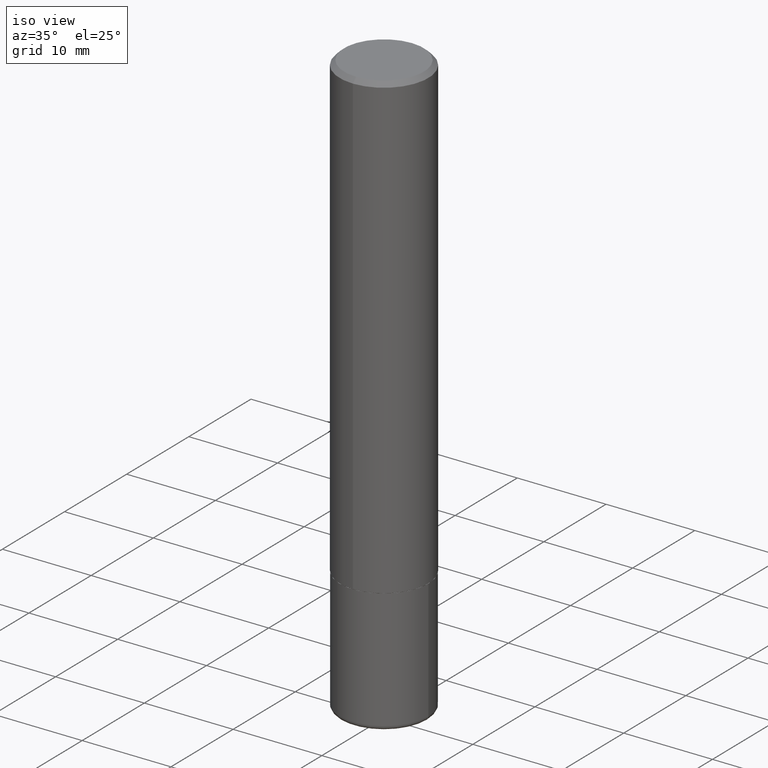
[diagram: clean part render]
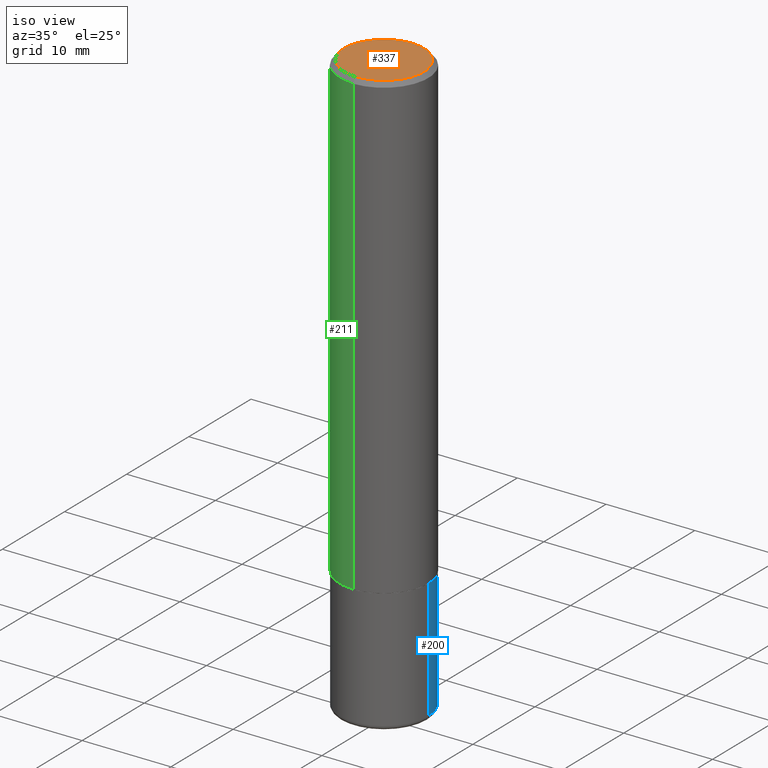
[diagram: same view with three faces highlighted in distinct colors, each labeled with its STEP entity id]
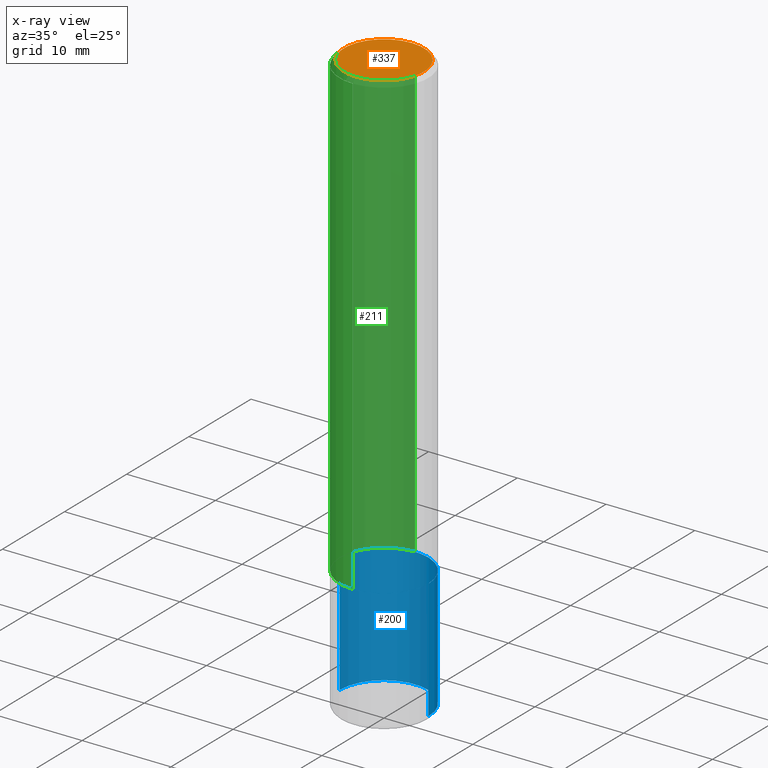
[diagram: x-ray of the same camera — body ghosted, the three highlighted faces saturated]
A machine part, iso view with three faces highlighted in distinct colors.
The next image is the same camera in x-ray (body ghosted, the three faces saturated) — at least one of them is partly hidden behind the body in this view.
Their STEP definitions:

[orange] entity #337 — the highlighted planar face has unit normal (0, -0, -1).
#1 = CIRCLE ( 'NONE', #151, 0.1768499999999999239 ) ;
#16 = DIRECTION ( 'NONE',  ( 6.982962677686265922E-15, 1.000000000000000000, -3.490700035582381786E-15 ) ) ;
#47 = VERTEX_POINT ( 'NONE', #175 ) ;
#58 = AXIS2_PLACEMENT_3D ( 'NONE', #345, #187, #16 ) ;
#64 = ORIENTED_EDGE ( 'NONE', *, *, #336, .T. ) ;
#66 = CARTESIAN_POINT ( 'NONE',  ( -2.502422567953256379E-45, 3.571199986484879937E-31, 1.023061262807437951E-16 ) ) ;
#110 = ORIENTED_EDGE ( 'NONE', *, *, #290, .T. ) ;
#151 = AXIS2_PLACEMENT_3D ( 'NONE', #224, #384, #372 ) ;
#152 = FACE_OUTER_BOUND ( 'NONE', #322, .T. ) ;
#175 = CARTESIAN_POINT ( 'NONE',  ( 1.304766576325678705E-15, 0.1768499999999999239, -5.150241750120001251E-16 ) ) ;
#187 = DIRECTION ( 'NONE',  ( 2.446014387336122996E-29, -3.490700035582381786E-15, -1.000000000000000000 ) ) ;
#198 = CARTESIAN_POINT ( 'NONE',  ( -1.281884050883609900E-15, -0.1768499999999999239, 7.196364275734877646E-16 ) ) ;
#222 = CIRCLE ( 'NONE', #328, 0.1768499999999999239 ) ;
#224 = CARTESIAN_POINT ( 'NONE',  ( -2.502422567953256379E-45, 3.571199986484879937E-31, 1.023061262807437951E-16 ) ) ;
#238 = DIRECTION ( 'NONE',  ( -6.982962677686265922E-15, -1.000000000000000000, 3.490700035582381391E-15 ) ) ;
#244 = PLANE ( 'NONE',  #58 ) ;
#275 = DIRECTION ( 'NONE',  ( -2.446014387336123276E-29, 3.490700035582381786E-15, 1.000000000000000000 ) ) ;
#290 = EDGE_CURVE ( 'NONE', #47, #314, #222, .T. ) ;
#314 = VERTEX_POINT ( 'NONE', #198 ) ;
#322 = EDGE_LOOP ( 'NONE', ( #110, #64 ) ) ;
#328 = AXIS2_PLACEMENT_3D ( 'NONE', #66, #275, #238 ) ;
#336 = EDGE_CURVE ( 'NONE', #314, #47, #1, .T. ) ;
#337 = ADVANCED_FACE ( 'NONE', ( #152 ), #244, .F. ) ;
#345 = CARTESIAN_POINT ( 'NONE',  ( 1.234936949548815604E-15, 0.1768499999999999239, -5.661772381523719610E-16 ) ) ;
#372 = DIRECTION ( 'NONE',  ( -6.982962677686265922E-15, -1.000000000000000000, 3.490700035582381391E-15 ) ) ;
#384 = DIRECTION ( 'NONE',  ( -2.446014387336123276E-29, 3.490700035582381786E-15, 1.000000000000000000 ) ) ;

[blue] entity #200 — the highlighted cylindrical surface (partial cylindrical patch) has radius 5 mm, axis along (-0, 0, 1).
#4 = LINE ( 'NONE', #164, #75 ) ;
#11 = CARTESIAN_POINT ( 'NONE',  ( 0.1968499999999999417, -1.037807913157736305E-14, -2.578700000000000436 ) ) ;
#24 = CARTESIAN_POINT ( 'NONE',  ( 6.306130410509613019E-29, -9.003482928474821437E-15, -2.578700000000000436 ) ) ;
#27 = VERTEX_POINT ( 'NONE', #276 ) ;
#29 = ORIENTED_EDGE ( 'NONE', *, *, #54, .T. ) ;
#30 = VERTEX_POINT ( 'NONE', #368 ) ;
#54 = EDGE_CURVE ( 'NONE', #416, #30, #265, .T. ) ;
#69 = VECTOR ( 'NONE', #414, 39.37007874015748143 ) ;
#75 = VECTOR ( 'NONE', #331, 39.37007874015748143 ) ;
#76 = EDGE_CURVE ( 'NONE', #30, #179, #353, .T. ) ;
#85 = CARTESIAN_POINT ( 'NONE',  ( -0.1968499999999999694, 1.398703375343756999E-15, -9.682923725166782276E-30 ) ) ;
#102 = EDGE_CURVE ( 'NONE', #416, #27, #4, .T. ) ;
#108 = CYLINDRICAL_SURFACE ( 'NONE', #214, 0.1968499999999999694 ) ;
#113 = ORIENTED_EDGE ( 'NONE', *, *, #102, .F. ) ;
#133 = DIRECTION ( 'NONE',  ( -2.445468806185136597E-29, 3.491481338843145583E-15, 1.000000000000000000 ) ) ;
#144 = DIRECTION ( 'NONE',  ( 1.000000000000000000, -6.982962677686266711E-15, 4.876176775795935793E-29 ) ) ;
#148 = EDGE_CURVE ( 'NONE', #27, #179, #377, .T. ) ;
#160 = EDGE_LOOP ( 'NONE', ( #29, #329, #347, #113 ) ) ;
#164 = CARTESIAN_POINT ( 'NONE',  ( 0.1968499999999999694, -1.374596203102541411E-15, 9.598753983154298056E-30 ) ) ;
#169 = CARTESIAN_POINT ( 'NONE',  ( 0.000000000000000000, 0.000000000000000000, 0.000000000000000000 ) ) ;
#176 = FACE_OUTER_BOUND ( 'NONE', #160, .T. ) ;
#179 = VERTEX_POINT ( 'NONE', #208 ) ;
#181 = DIRECTION ( 'NONE',  ( 1.000000000000000000, -6.982962677686269866E-15, 0.000000000000000000 ) ) ;
#200 = ADVANCED_FACE ( 'NONE', ( #176 ), #108, .T. ) ;
#205 = DIRECTION ( 'NONE',  ( 1.000000000000000000, -6.982962677686267499E-15, 0.000000000000000000 ) ) ;
#208 = CARTESIAN_POINT ( 'NONE',  ( -0.1968500000000000250, -6.676918387333497821E-15, -2.047200000000000131 ) ) ;
#209 = DIRECTION ( 'NONE',  ( -2.445468806185136597E-29, 3.491481338843145583E-15, 1.000000000000000000 ) ) ;
#214 = AXIS2_PLACEMENT_3D ( 'NONE', #169, #209, #144 ) ;
#254 = DIRECTION ( 'NONE',  ( -2.445468806185136597E-29, 3.491481338843145583E-15, 1.000000000000000000 ) ) ;
#265 = CIRCLE ( 'NONE', #406, 0.1968499999999999694 ) ;
#276 = CARTESIAN_POINT ( 'NONE',  ( 0.1968500000000000250, -8.522356799982231388E-15, -2.047200000000000131 ) ) ;
#281 = CARTESIAN_POINT ( 'NONE',  ( 5.006363740022212241E-29, -7.147760596879688202E-15, -2.047200000000000131 ) ) ;
#297 = AXIS2_PLACEMENT_3D ( 'NONE', #281, #133, #205 ) ;
#329 = ORIENTED_EDGE ( 'NONE', *, *, #76, .T. ) ;
#331 = DIRECTION ( 'NONE',  ( -2.445468806185136877E-29, 3.491481338843145188E-15, 1.000000000000000000 ) ) ;
#347 = ORIENTED_EDGE ( 'NONE', *, *, #148, .F. ) ;
#353 = LINE ( 'NONE', #85, #69 ) ;
#368 = CARTESIAN_POINT ( 'NONE',  ( -0.1968499999999999417, -7.604779553131062861E-15, -2.578700000000000436 ) ) ;
#377 = CIRCLE ( 'NONE', #297, 0.1968500000000000250 ) ;
#406 = AXIS2_PLACEMENT_3D ( 'NONE', #24, #254, #181 ) ;
#414 = DIRECTION ( 'NONE',  ( -2.445468806185136877E-29, 3.491481338843145188E-15, 1.000000000000000000 ) ) ;
#416 = VERTEX_POINT ( 'NONE', #11 ) ;

[green] entity #211 — the highlighted cylindrical surface (partial cylindrical patch) has radius 5 mm, axis along (-0, 0, 1).
#36 = ORIENTED_EDGE ( 'NONE', *, *, #223, .T. ) ;
#70 = VECTOR ( 'NONE', #155, 39.37007874015748143 ) ;
#88 = LINE ( 'NONE', #348, #70 ) ;
#90 = EDGE_CURVE ( 'NONE', #388, #253, #271, .T. ) ;
#99 = ORIENTED_EDGE ( 'NONE', *, *, #304, .F. ) ;
#106 = AXIS2_PLACEMENT_3D ( 'NONE', #216, #157, #415 ) ;
#120 = CARTESIAN_POINT ( 'NONE',  ( -1.350489030861325429E-15, -0.1968500000000000805, -0.01999999999999935510 ) ) ;
#124 = CARTESIAN_POINT ( 'NONE',  ( 1.374596203102542003E-15, 0.1968499999999999417, -0.02000000000000072900 ) ) ;
#125 = ORIENTED_EDGE ( 'NONE', *, *, #90, .T. ) ;
#145 = CYLINDRICAL_SURFACE ( 'NONE', #106, 0.1968500000000001082 ) ;
#155 = DIRECTION ( 'NONE',  ( -2.446014387336123276E-29, 3.490700035582381786E-15, 1.000000000000000000 ) ) ;
#157 = DIRECTION ( 'NONE',  ( -2.446014387336123276E-29, 3.490700035582381786E-15, 1.000000000000000000 ) ) ;
#188 = CARTESIAN_POINT ( 'NONE',  ( 5.005034639367176038E-29, -7.142670412808670312E-15, -2.046200000000000241 ) ) ;
#193 = DIRECTION ( 'NONE',  ( -2.446014387336123276E-29, 3.490700035582381786E-15, 1.000000000000000000 ) ) ;
#199 = ORIENTED_EDGE ( 'NONE', *, *, #359, .F. ) ;
#211 = ADVANCED_FACE ( 'NONE', ( #295 ), #145, .T. ) ;
#212 = AXIS2_PLACEMENT_3D ( 'NONE', #188, #405, #285 ) ;
#216 = CARTESIAN_POINT ( 'NONE',  ( 0.000000000000000000, 0.000000000000000000, 0.000000000000000000 ) ) ;
#217 = VERTEX_POINT ( 'NONE', #120 ) ;
#223 = EDGE_CURVE ( 'NONE', #253, #217, #88, .T. ) ;
#229 = CIRCLE ( 'NONE', #241, 0.1968500000000000250 ) ;
#241 = AXIS2_PLACEMENT_3D ( 'NONE', #245, #376, #249 ) ;
#245 = CARTESIAN_POINT ( 'NONE',  ( 4.892028774672256712E-31, -6.981400071164778067E-17, -0.02000000000000004205 ) ) ;
#249 = DIRECTION ( 'NONE',  ( -6.982962677686265133E-15, -1.000000000000000000, 3.491137977679279424E-15 ) ) ;
#253 = VERTEX_POINT ( 'NONE', #410 ) ;
#268 = LINE ( 'NONE', #363, #369 ) ;
#271 = CIRCLE ( 'NONE', #212, 0.1968500000000002470 ) ;
#273 = EDGE_LOOP ( 'NONE', ( #99, #125, #36, #199 ) ) ;
#285 = DIRECTION ( 'NONE',  ( -6.982962677686265922E-15, -1.000000000000000000, 4.163344669033670112E-15 ) ) ;
#295 = FACE_OUTER_BOUND ( 'NONE', #273, .T. ) ;
#299 = VERTEX_POINT ( 'NONE', #124 ) ;
#304 = EDGE_CURVE ( 'NONE', #388, #299, #268, .T. ) ;
#341 = CARTESIAN_POINT ( 'NONE',  ( 1.398703375343783820E-15, 0.1968499999999931416, -2.046200000000001129 ) ) ;
#348 = CARTESIAN_POINT ( 'NONE',  ( -1.374596203102542200E-15, -0.1968500000000001082, 6.871443020043921939E-16 ) ) ;
#359 = EDGE_CURVE ( 'NONE', #299, #217, #229, .T. ) ;
#363 = CARTESIAN_POINT ( 'NONE',  ( 1.398703375343757788E-15, 0.1968500000000001082, -6.871443020043921939E-16 ) ) ;
#369 = VECTOR ( 'NONE', #193, 39.37007874015748143 ) ;
#376 = DIRECTION ( 'NONE',  ( -2.446014387336123276E-29, 3.490700035582381786E-15, 1.000000000000000000 ) ) ;
#388 = VERTEX_POINT ( 'NONE', #341 ) ;
#405 = DIRECTION ( 'NONE',  ( -2.446014387336123276E-29, 3.490700035582381786E-15, 1.000000000000000000 ) ) ;
#410 = CARTESIAN_POINT ( 'NONE',  ( -1.374596203102493093E-15, -0.1968500000000073802, -2.046199999999999353 ) ) ;
#415 = DIRECTION ( 'NONE',  ( -6.982962677686265922E-15, -1.000000000000000000, 3.490700035582381786E-15 ) ) ;